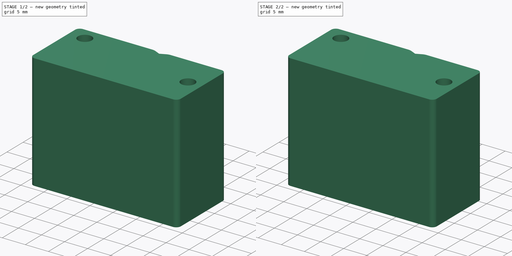
[diagram: build sequence overview — one tinted view per stage of 2, left to right]
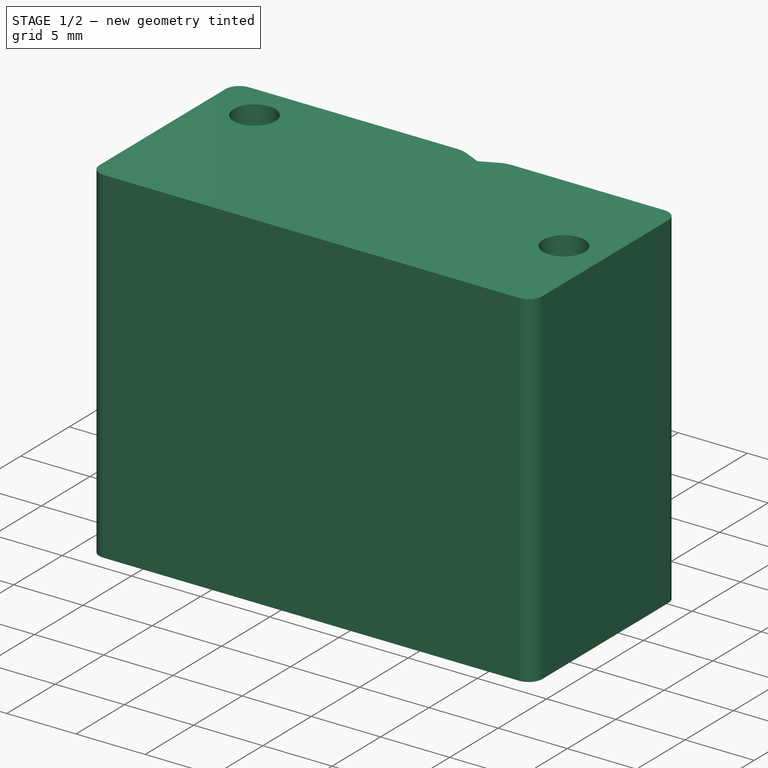
[diagram: stage 1 of 2 — iso view after this stage's code; geometry added in this stage tinted green]
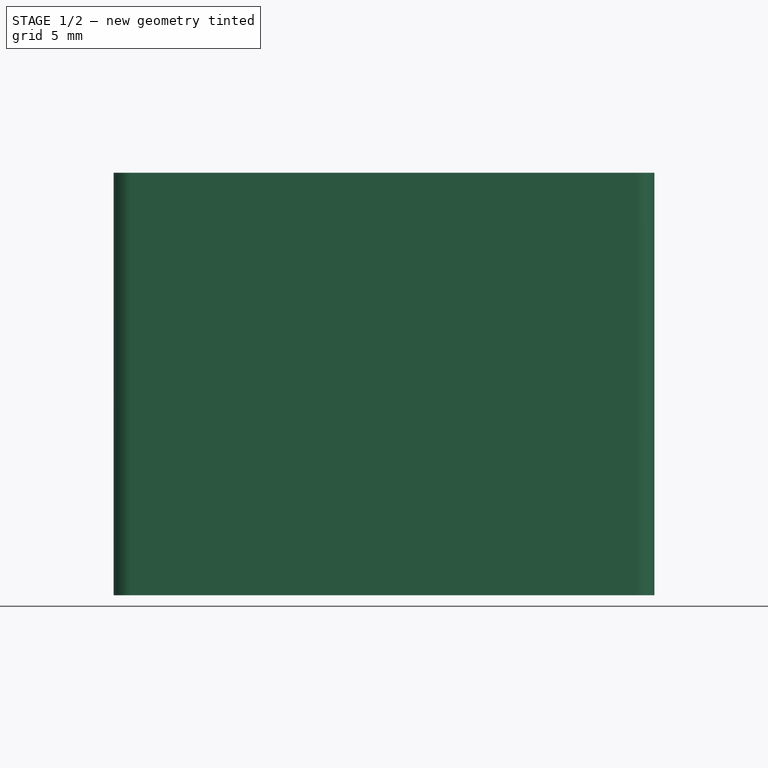
[diagram: stage 1 of 2 — front view after this stage's code; geometry added in this stage tinted green]
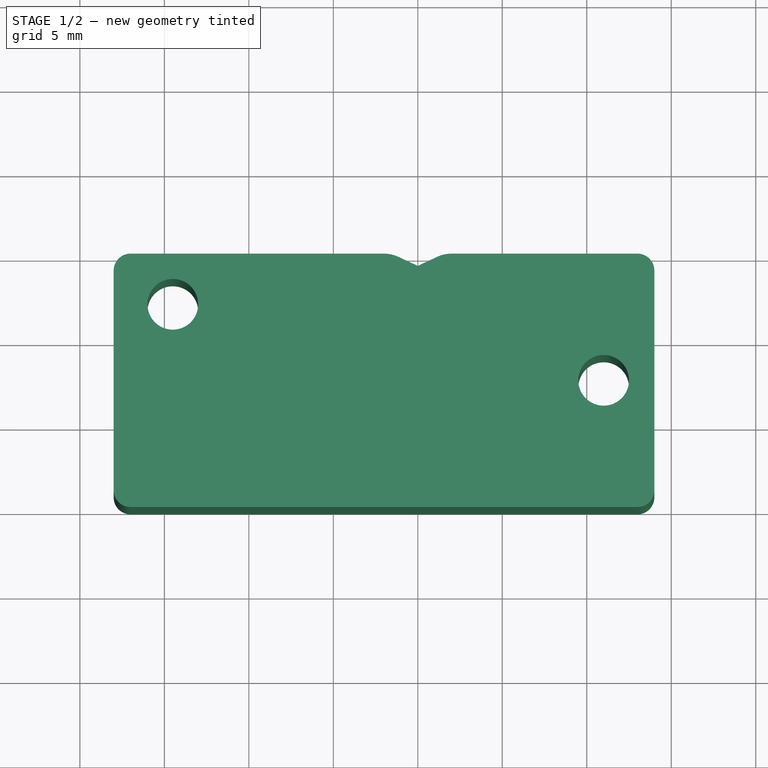
[diagram: stage 1 of 2 — top view after this stage's code; geometry added in this stage tinted green]
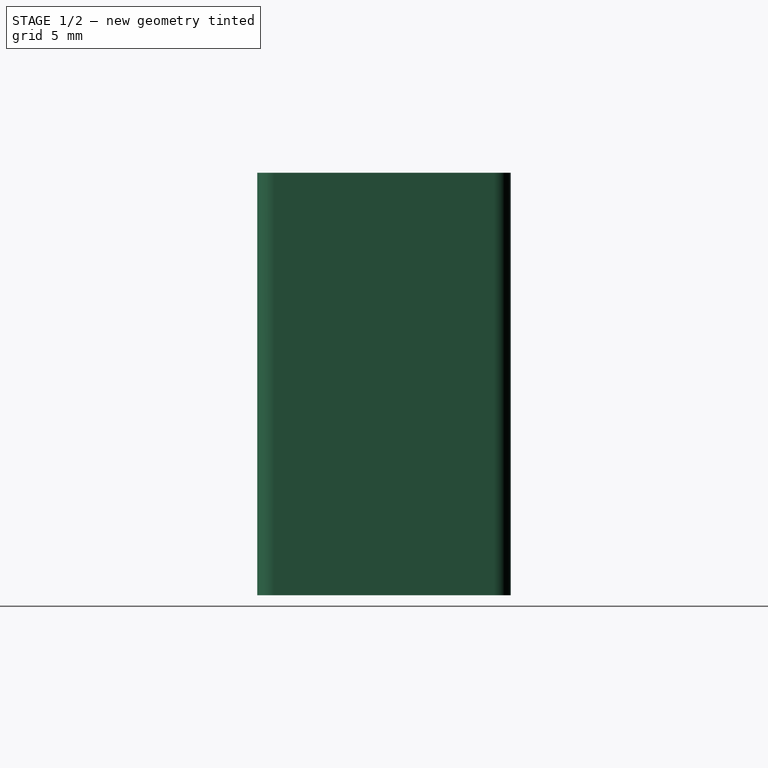
[diagram: stage 1 of 2 — right view after this stage's code; geometry added in this stage tinted green]
FCSTD DOCUMENT  (FreeCAD 0.19R24267 +99 (Git))
Label: V2 Clamp jaw
License: All rights reserved
LicenseURL: http://en.wikipedia.org/wiki/All_rights_reserved
objects: Sketcher::SketchObject×3, PartDesign::Pad×1, PartDesign::Hole×1, PartDesign::Pocket×1, PartDesign::Body×1
note: 10 computed .brp shape members not serialized (recipe doc carries the construction recipe); baked Part::Feature solids carry a one-line shape summary decoded from their .brp

FEATURE [Sketcher::SketchObject] Sketch  label="Main profile sketch"
  FullyConstrained = true
  MapMode = 5
  Support = -> [XY_Plane]
  sketch-geometry (28):
    g0: LineSegment StartX=-17 StartY=0 StartZ=0 EndX=-12.1421 EndY=0 EndZ=0
    g1: LineSegment StartX=-12.1421 StartY=0 StartZ=0 EndX=-3.14214 EndY=-9 EndZ=0
    g2: LineSegment StartX=-3.14214 StartY=-9 StartZ=0 EndX=3.14214 EndY=-9 EndZ=0
    g3: LineSegment StartX=3.14214 StartY=-9 StartZ=0 EndX=12.1421 EndY=0 EndZ=0
    g4: LineSegment StartX=12.1421 StartY=0 StartZ=0 EndX=13 EndY=0 EndZ=0
    g5: LineSegment StartX=-18 StartY=-1 StartZ=0 EndX=-18 EndY=-14 EndZ=0
    g6: LineSegment StartX=-17 StartY=-15 StartZ=0 EndX=13 EndY=-15 EndZ=0
    g7: Circle CenterX=0 CenterY=2 CenterZ=0 NormalX=0 NormalY=0 NormalZ=1 AngleXU=0 Radius=10
    g8: GeomPoint X=0 Y=-8 Z=0
    g9: GeomPoint X=0 Y=-9 Z=0
    g10: ArcOfCircle CenterX=-17 CenterY=-1 CenterZ=0 NormalX=0 NormalY=0 NormalZ=1 AngleXU=0 Radius=1 StartAngle=1.5708 EndAngle=3.14159
    g11: ArcOfCircle CenterX=-17 CenterY=-14 CenterZ=0 NormalX=0 NormalY=0 NormalZ=1 AngleXU=0 Radius=1 StartAngle=3.14159 EndAngle=4.71239
    g12: ArcOfCircle CenterX=13 CenterY=-14 CenterZ=0 NormalX=0 NormalY=0 NormalZ=1 AngleXU=0 Radius=1 StartAngle=4.71239 EndAngle=6.28319
    g13: Circle CenterX=-14.5 CenterY=-3 CenterZ=0 NormalX=0 NormalY=0 NormalZ=1 AngleXU=0 Radius=1.5
    g14: LineSegment StartX=-12.1421 StartY=0 StartZ=0 EndX=-2 EndY=0 EndZ=0
    g15: LineSegment StartX=-1.15476 StartY=-0.187384 StartZ=0 EndX=0 EndY=-0.725859 EndZ=0
    g16: LineSegment StartX=0 StartY=-0.725859 StartZ=0 EndX=1.15476 EndY=-0.187384 EndZ=0
    g17: LineSegment StartX=12.1421 StartY=0 StartZ=0 EndX=2 EndY=0 EndZ=0
    g18: ArcOfCircle CenterX=-2 CenterY=-2 CenterZ=0 NormalX=0 NormalY=0 NormalZ=1 AngleXU=0 Radius=2 StartAngle=1.13446 EndAngle=1.5708
    g19: ArcOfCircle CenterX=2 CenterY=-2 CenterZ=0 NormalX=0 NormalY=0 NormalZ=1 AngleXU=0 Radius=2 StartAngle=1.5708 EndAngle=2.00713
    g20: LineSegment StartX=-2 StartY=0 StartZ=0 EndX=2 EndY=0 EndZ=0
    g21: LineSegment StartX=14 StartY=-14 StartZ=0 EndX=14 EndY=-1 EndZ=0
    g22: ArcOfCircle CenterX=13 CenterY=-1 CenterZ=0 NormalX=0 NormalY=0 NormalZ=1 AngleXU=0 Radius=1 StartAngle=0 EndAngle=1.5708
    g23: LineSegment StartX=-16 StartY=-3 StartZ=0 EndX=-13 EndY=-3 EndZ=0
    g24: LineSegment StartX=-14.5 StartY=-1.5 StartZ=0 EndX=-14.5 EndY=-4.5 EndZ=0
    g25: Circle CenterX=11 CenterY=-7.5 CenterZ=0 NormalX=0 NormalY=0 NormalZ=1 AngleXU=0 Radius=1.5
    g26: LineSegment StartX=11 StartY=-6 StartZ=0 EndX=11 EndY=-9 EndZ=0
    g27: LineSegment StartX=9.5 StartY=-7.5 StartZ=0 EndX=12.5 EndY=-7.5 EndZ=0
  constraints (87):
    c: PointOnObject(g0,g-1)
    c: Coincident(g1,g0)
    c: Coincident(g2,g1)
    c: Horizontal(g2)
    c: Coincident(g3,g2)
    c: Coincident(g4,g3)
    c: Vertical(g5)
    c: Symmetric(g0,g3,g-2)
    c: Horizontal(g6)
    c: PointOnObject(g7,g-2)
    c: Tangent(g1,g7)
    c: Tangent(g3,g7)
    c: PointOnObject(g8,g-2)
    c: PointOnObject(g9,g-2)
    c: PointOnObject(g9,g2)
    c: PointOnObject(g8,g7)
    c: DistanceY(g9,g8) = 1
    c: Angle(g3,g1) = 1.5708
    c: Radius(g7) = 10
    c: DistanceY(g-1,g7) = 2
    c: Tangent(g0,g10) = 1.5708
    c: Tangent(g5,g10) = -1.5708
    c: Tangent(g5,g11) = -1.5708
    c: Tangent(g6,g11) = -1.5708
    c: Tangent(g6,g12) = -1.5708
    c: Equal(g11,g12)
    c: Horizontal(g0)
    c: Horizontal(g4)
    c: DistanceY(g13,g0) = 3
    c: Radius(g13) = 1.5
    c: Coincident(g14,g0)
    c: PointOnObject(g15,g-2)
    c: Coincident(g16,g15)
    c: Coincident(g17,g3)
    c: Equal(g16,g15)
    c: Angle(g16,g15) = 2.26893
    c: Tangent(g14,g18) = 1.5708
    c: Tangent(g15,g18) = 1.5708
    c: Tangent(g16,g19) = 1.5708
    c: Tangent(g17,g19) = -1.5708
    c: Horizontal(g17)
    c: Horizontal(g14)
    c: Coincident(g20,g14)
    c: Coincident(g20,g17)
    c: Equal(g18,g19)
    c: Radius(g19) = 2
    c: DistanceX(g14,g17) = 4
    c: Vertical(g21)
    c: DistanceY(g6,g0) = 15
    c: Tangent(g4,g22) = 1.5708
    c: Radius(g10) = 1
    c: Tangent(g21,g12) = -1.5708
    c: Equal(g12,g10)
    c: DistanceX(g7,g12) = 14
    c: DistanceX(g5,g7) = 18
    c: DistanceX(g5,g12) = 32
    c: DistanceX(g5,g13) = 3.5
    c: DistanceY(g1,g0) = 9
    c: DistanceX(g0,g4) = 24.2843
    c: DistanceX(g1,g2) = 6.28427
    c: Tangent(g22,g21) = -1.5708
    c: Equal(g22,g10)
    c: DistanceY(g6,g7) = 17
    c: PointOnObject(g23,g13)
    c: PointOnObject(g23,g13)
    c: Horizontal(g23)
    c: PointOnObject(g24,g13)
    c: PointOnObject(g24,g13)
    c: Vertical(g24)
    c: PointOnObject(g13,g23)
    c: PointOnObject(g13,g24)
    c: DistanceX(g25,g21) = 3
    c: Equal(g13,g25)
    c: PointOnObject(g26,g25)
    c: PointOnObject(g26,g25)
    c: Vertical(g26)
    c: PointOnObject(g27,g25)
    c: PointOnObject(g27,g25)
    c: Horizontal(g27)
    c: PointOnObject(g25,g27)
    c: PointOnObject(g25,g26)
    c: DistanceY(g25,g4) = 7.5
    c: DistanceX(g13,g-1) = 14.5
    c: DistanceX(g8,g27) = 9.5
    c: DistanceY(g27,g7) = 9.5
    c: DistanceY(g23,g7) = 5
    c: DistanceX(g23,g-1) = 13
FEATURE [PartDesign::Pad] Pad  label="Clamp width pad"
  Direction = (1,1,1)
  Length = 25
  Length2 = 100
  Midplane = true
  Profile = -> Sketch
  Type = 0
FEATURE [Sketcher::SketchObject] Sketch003  label="Countersink for ball bearing sketch"
  FullyConstrained = true
  MapMode = 5
  Placement = pos=(0,0,0) rot=(1,0,0;1.5708rad)
  Support = -> [XZ_Plane]
  sketch-geometry (1):
    g0: Circle CenterX=0 CenterY=0 CenterZ=0 NormalX=0 NormalY=0 NormalZ=1 AngleXU=0 Radius=3.14
  constraints (2):
    c: Coincident(g0,g-1)
    c: Diameter(g0) = 6.28
FEATURE [PartDesign::Hole] Hole  label="Countersink for ball bearing"
  BaseFeature = -> Pad
  Depth = 9
  DepthType = 0
  Diameter = 6.28
  DrillForDepth = false
  DrillPoint = 0
  DrillPointAngle = 118
  HoleCutCountersinkAngle = 90
  HoleCutCustomValues = false
  HoleCutDepth = 0
  HoleCutDiameter = 24.2
  HoleCutType = 2
  ModelActualThread = false
  Profile = -> Sketch003
  Reversed = true
  Tapered = false
  TaperedAngle = 90
  ThreadAngle = 0
  ThreadClass = 0
  ThreadCutOffInner = 0
  ThreadCutOffOuter = 0
  ThreadDirection = 0
  ThreadFit = 0
  ThreadPitch = 0
  ThreadSize = 0
  ThreadType = 0
  Threaded = false
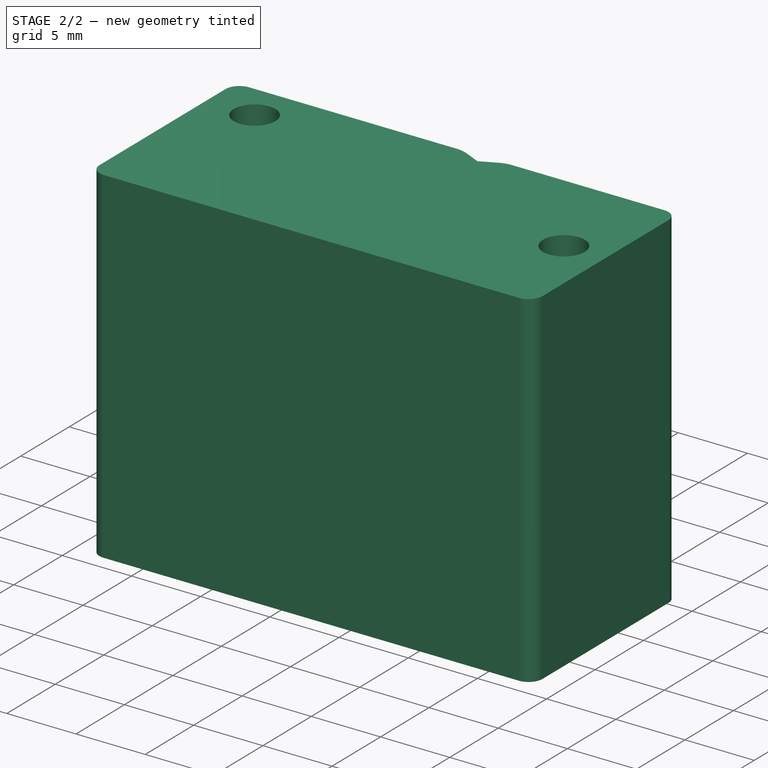
[diagram: stage 2 of 2 — iso view after this stage's code; geometry added in this stage tinted green]
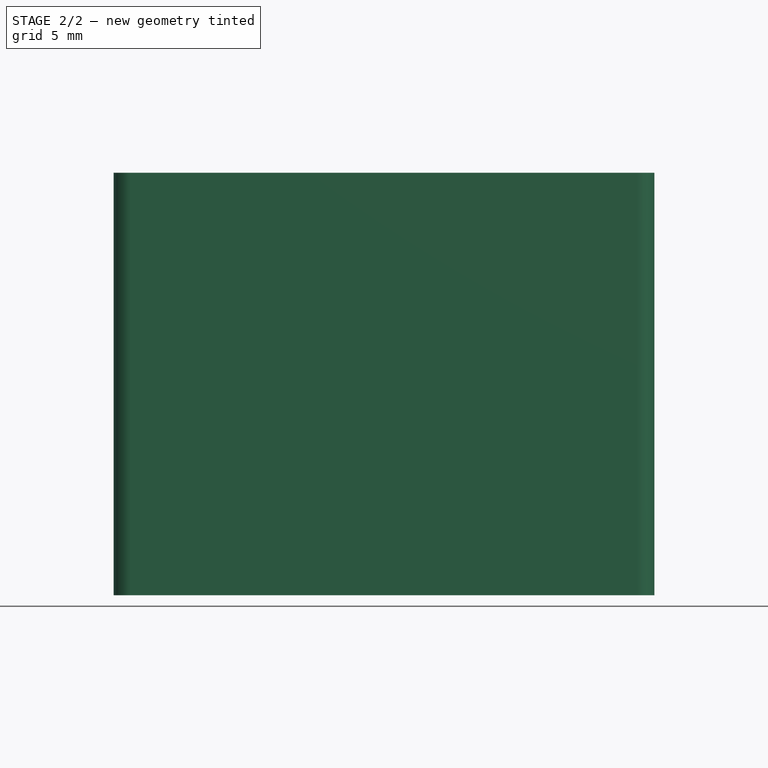
[diagram: stage 2 of 2 — front view after this stage's code; geometry added in this stage tinted green]
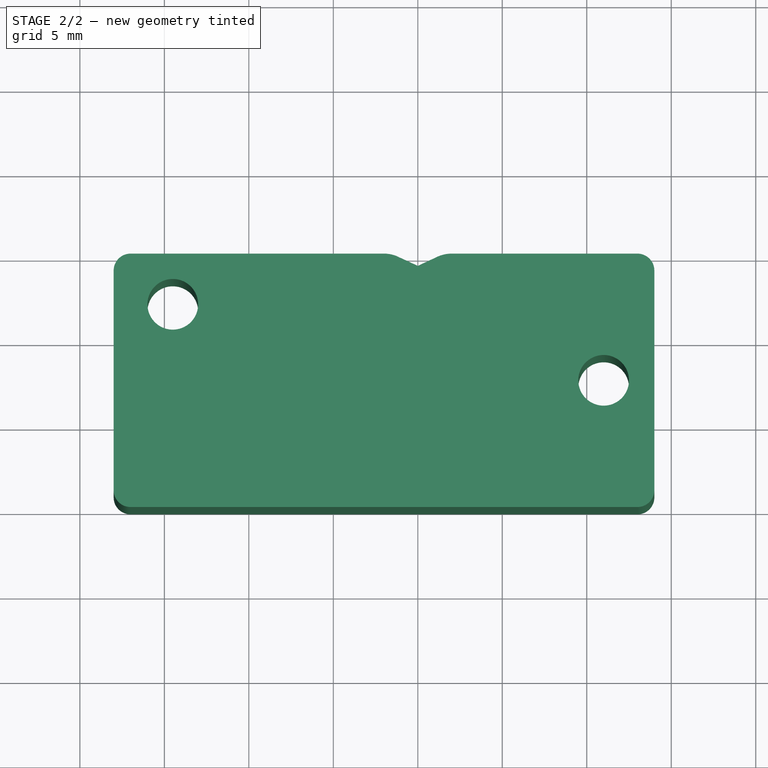
[diagram: stage 2 of 2 — top view after this stage's code; geometry added in this stage tinted green]
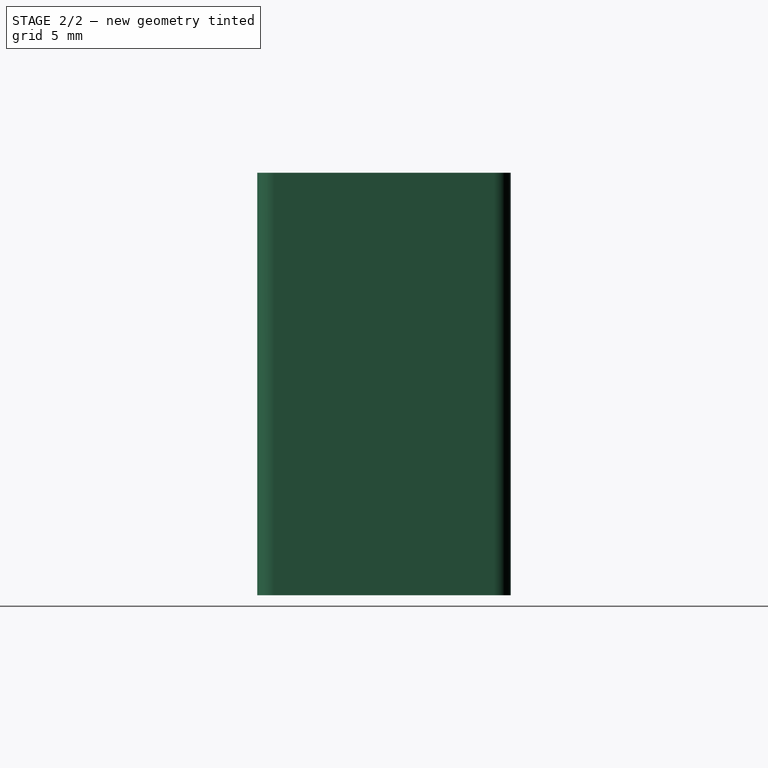
[diagram: stage 2 of 2 — right view after this stage's code; geometry added in this stage tinted green]
FEATURE [Sketcher::SketchObject] Sketch004  label="3D render jaw allignment marks sketch"
  FullyConstrained = true
  MapMode = 5
  Support = -> [XY_Plane]
  sketch-geometry (1):
    g0: Circle CenterX=0 CenterY=2 CenterZ=0 NormalX=0 NormalY=0 NormalZ=1 AngleXU=0 Radius=2.475
  constraints (3):
    c: PointOnObject(g0,g-2)
    c: DistanceY(g-1,g0) = 2
    c: Diameter(g0) = 4.95
FEATURE [PartDesign::Pocket] Pocket001  label="3D render jaw allignment marks"
  BaseFeature = -> Hole
  Length = 5
  Length2 = 100
  Midplane = true
  Profile = -> Sketch004
  Type = 1
FEATURE [PartDesign::Body] Body
  Group = -> [Sketch,Pad,Sketch003,Hole,Sketch004,Pocket001]
  Origin = -> Origin
  Tip = -> Pocket001
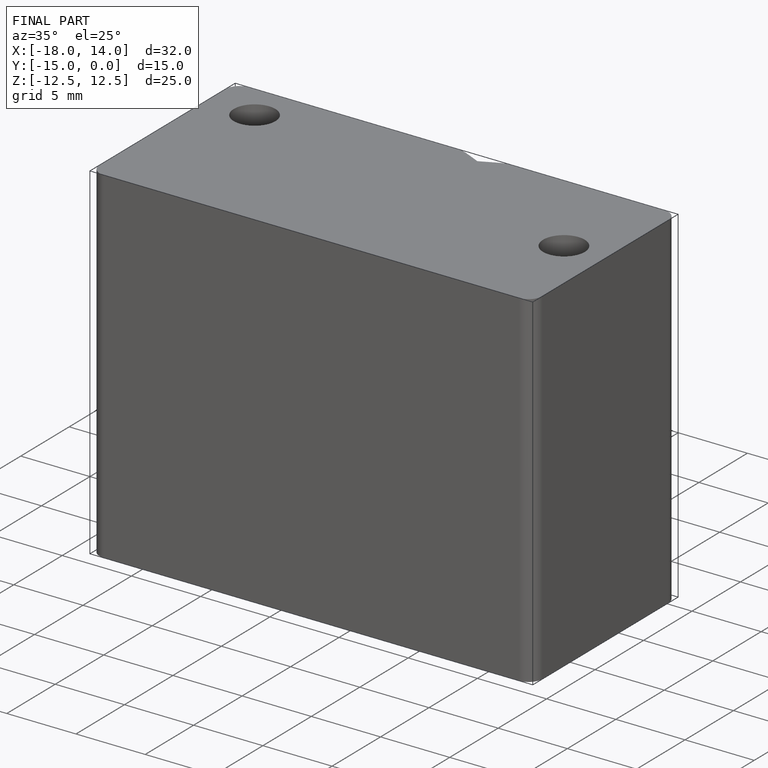
[diagram: finished part — iso view with bounding-box wireframe]
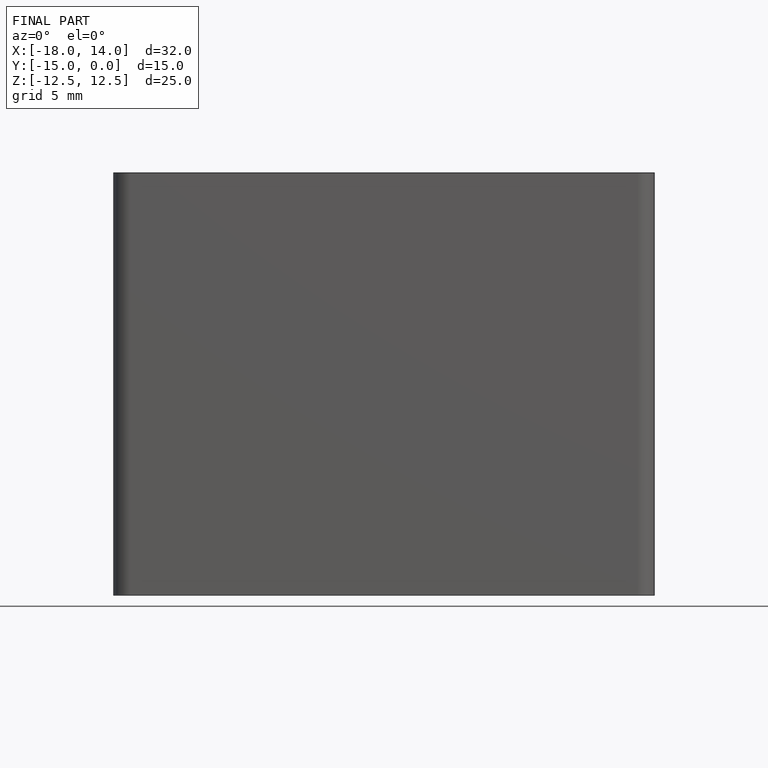
[diagram: finished part — front view with bounding-box wireframe]
